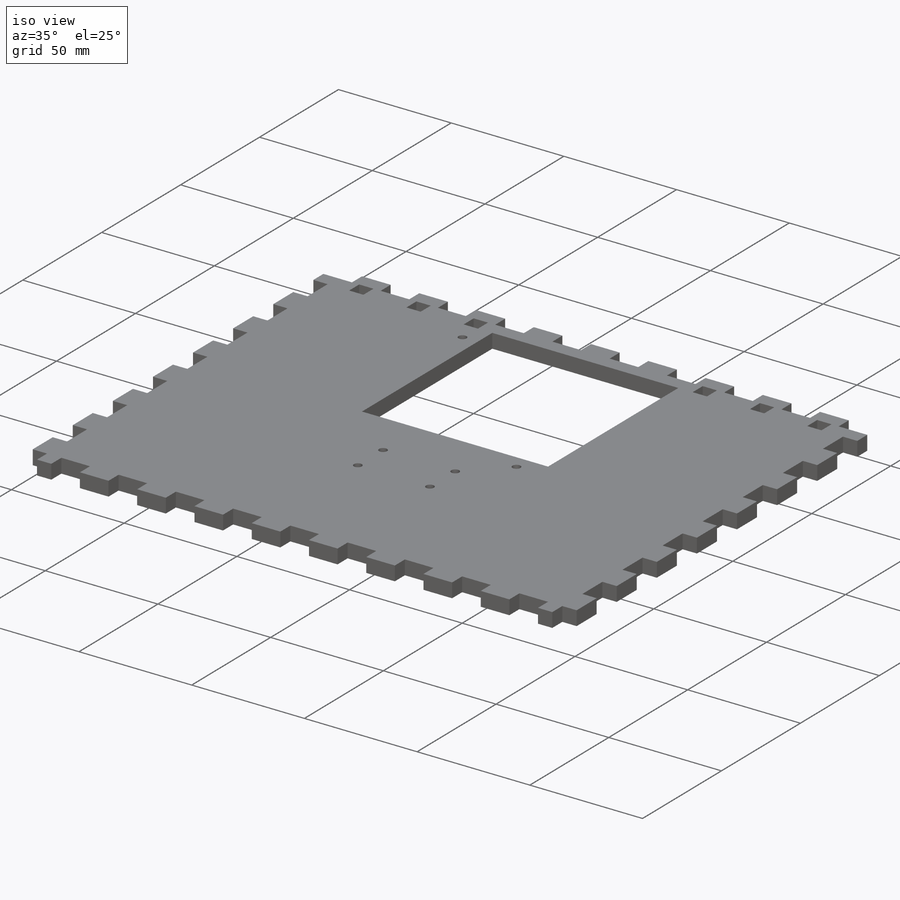
[diagram: iso view]
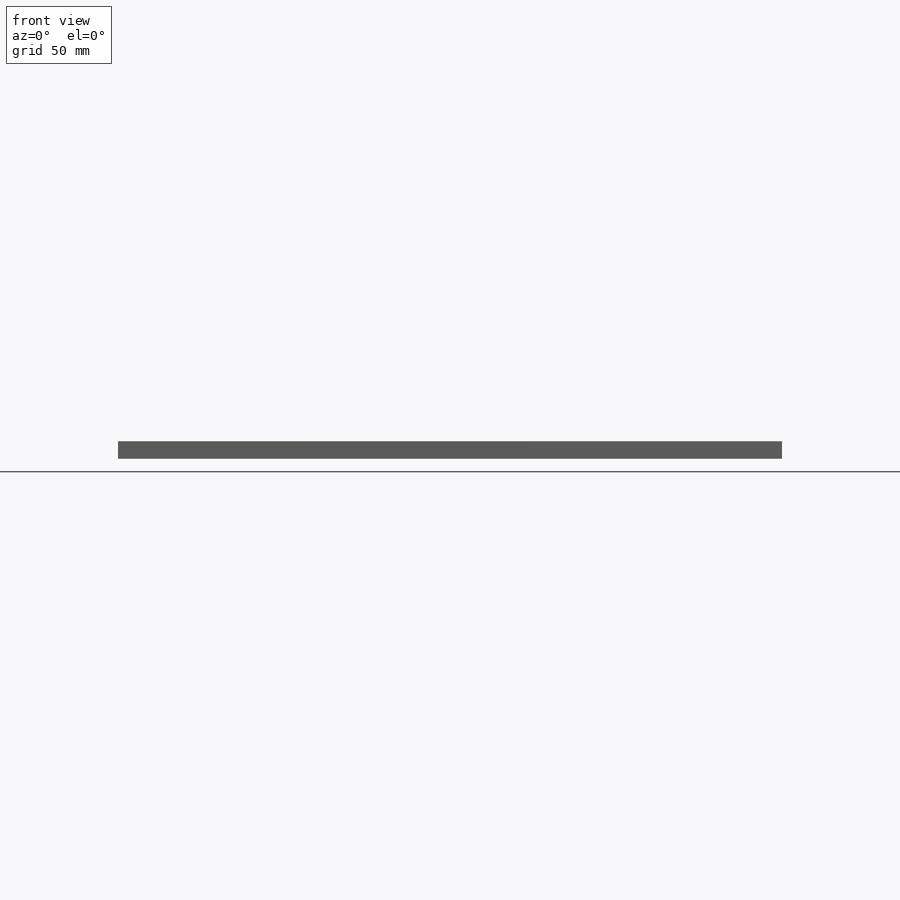
[diagram: front view]
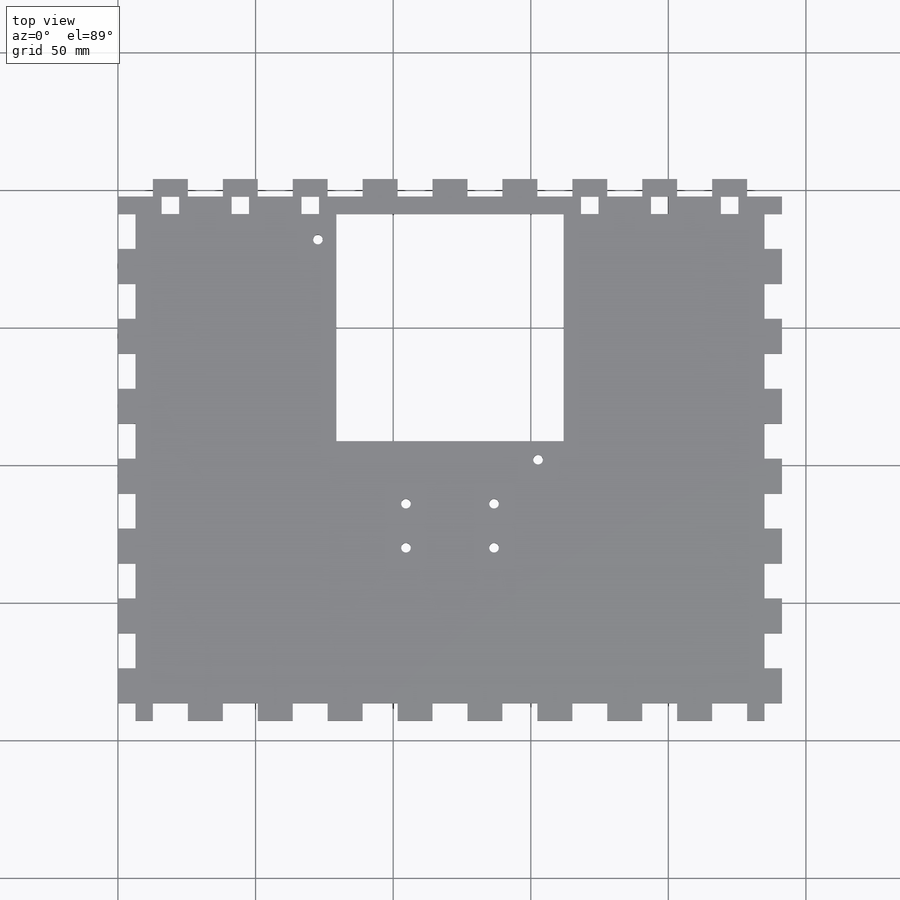
[diagram: top view]
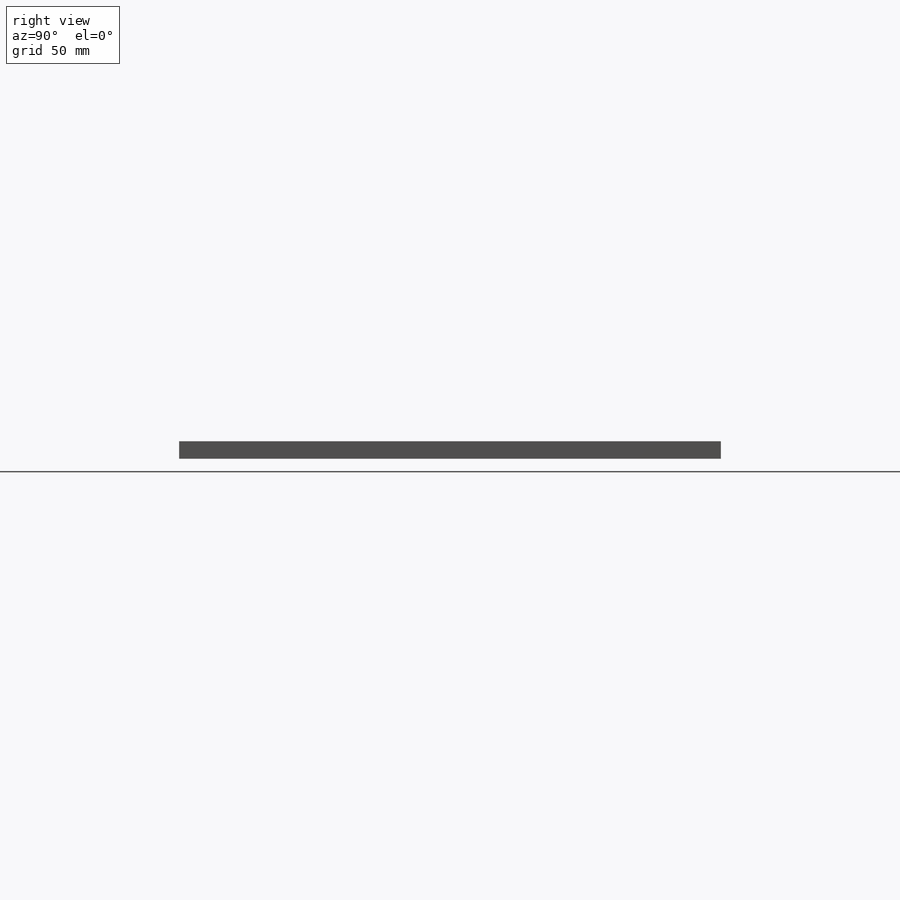
[diagram: right view]
SOLIDWORKS PART (.sldprt)
format: sldprt  version: not decoded by parser v0  size: 787,456 bytes
history: native  units: mm
features: sketch x10, cut_extrude x8, pattern_linear x5, extrude x2, material x1 (+13 scaffold rows collapsed)
feature tree (39):
  scaffold x13  (default folders/planes/origin — collapsed)
  material  "Pine"
  sketch  "Sketch1"  dims[D1=241.3mm D2=254.0mm]
  extrude  "Boss-Extrude1"  Depth=6.35mm
  sketch  "Sketch2"  dims[D1=12.7mm D2=6.35mm]
  cut_extrude  "Cut-Extrude1"  [1 undecoded]
  pattern_linear  "LPattern1"  Count1=10 Count2=1 Spacing1=25.4mm Spacing2=2.54mm
  sketch  "Sketch3"  dims[D1=6.35mm D2=12.7mm D3=6.35mm]
  cut_extrude  "Cut-Extrude2"  [1 undecoded]
  pattern_linear  "LPattern2"  Count1=10 Count2=1 Spacing1=25.4mm Spacing2=2.54mm
  sketch  "Sketch4"  dims[D1=6.35mm]
  cut_extrude  "Cut-Extrude3"  [1 undecoded]
  sketch  "Sketch5"
  cut_extrude  "Cut-Extrude4"  [1 undecoded]
  pattern_linear  "LPattern3"  Count1=10 Count2=1 Spacing1=25.4mm Spacing2=2.54mm
  sketch  "Sketch6"  dims[D1=82.55mm D2=82.55mm D3=79.375mm D4=6.35mm]
  cut_extrude  "Cut-Extrude5"  [1 undecoded]
  sketch  "Sketch7"  dims[D1=6.35mm D2=6.35mm D3=9.525mm]
  cut_extrude  "Cut-Extrude6"  [1 undecoded]
  pattern_linear  "LPattern4"  Count1=9 Count2=1 Spacing1=25.4mm Spacing2=2.54mm
  sketch  "Sketch8"  dims[c1.D3=3.5mm c1.D1=12.7mm c1.D2=174.625mm c2.D1=6.725mm c2.D2=6.725mm c2.D4=48.0mm c2.D5=80.0mm]
  cut_extrude  "Cut-Extrude7"  [1 undecoded]
  pattern_linear  "LPattern5"  Count1=13 Count2=11 Spacing1=16mm Spacing2=16mm
  sketch  "Sketch9"
  extrude  "Boss-Extrude2"  [1 undecoded]
  sketch  "Sketch10"
  cut_extrude  "Cut-Extrude8"  [1 undecoded]
decode coverage: 13 of 25 modeling features carry decoded parameters
note: 9 parameter values undecoded
summary: no parameter record found for 9 features
note: suppression state not decoded; provenance and decode notes live in map.json
